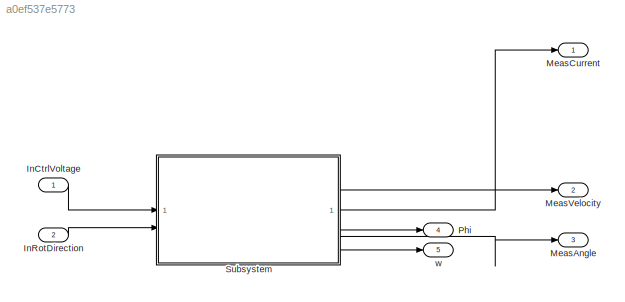
MODEL slx_a0ef537e5773
KIND model
CONFIG AbsTol = auto
CONFIG EnableMultiTasking = off
CONFIG FixedStep = auto
CONFIG MaxStep = auto
CONFIG MinStep = auto
CONFIG RelTol = 1e-3
CONFIG SampleTimeConstraint = Unconstrained
CONFIG SolverName = VariableStepAuto
CONFIG StartTime = 0.0
CONFIG StopTime = 10.0
BLOCK [Outport]  Phi
  Port = 4
BLOCK [Inport] InCtrlVoltage
BLOCK [Inport] InRotDirection
  Port = 2
BLOCK [Outport] MeasAngle
  Port = 3
BLOCK [Outport] MeasCurrent
BLOCK [Outport] MeasVelocity
  Port = 2
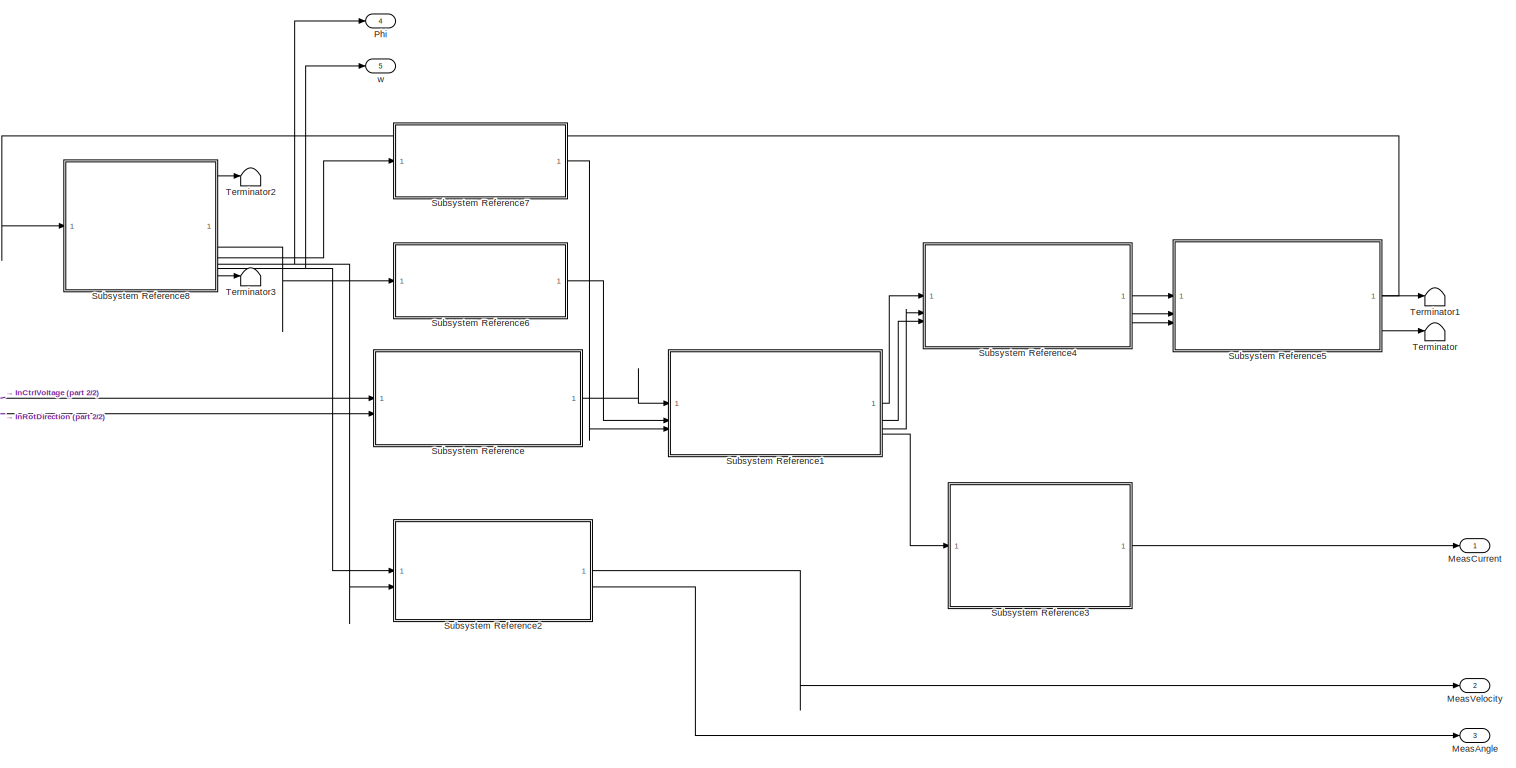
[diagram: Subsystem - part 1/2, most of the canvas]
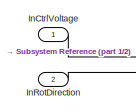
[diagram: Subsystem - part 2/2, middle left region]
BLOCK [SubSystem] Subsystem
BLOCK [Outport] Subsystem/ Phi
  Port = 4
BLOCK [Inport] Subsystem/InCtrlVoltage
BLOCK [Inport] Subsystem/InRotDirection
  Port = 2
BLOCK [Outport] Subsystem/MeasAngle
  Port = 3
BLOCK [Outport] Subsystem/MeasCurrent
BLOCK [Outport] Subsystem/MeasVelocity
  Port = 2
BLOCK [SubSystem] Subsystem/Subsystem Reference
  Kpa = 7.3
  ReferencedSubsystem = Power_Gain
BLOCK [SubSystem] Subsystem/Subsystem Reference1
  ReferencedSubsystem = Motor
  km = 16e-3
  kw = 62.8
  motor_nominal_voltage = 24
  vis_friction_coef_motor = 0.1
BLOCK [SubSystem] Subsystem/Subsystem Reference2
  ReferencedSubsystem = HallSensor
BLOCK [SubSystem] Subsystem/Subsystem Reference3
  ReferencedSubsystem = CurrentSensor
BLOCK [SubSystem] Subsystem/Subsystem Reference4
  J_gear = 2.4e-6
  ReferencedSubsystem = Reductor
  i_gear = 100
  vis_friction_coef_gear = 0.15
BLOCK [SubSystem] Subsystem/Subsystem Reference5
  J_pinion = 1e-6
  ReferencedSubsystem = RackAndPinion
  i_rp = 20000
  vis_friction_coef_rp = 0.002
BLOCK [SubSystem] Subsystem/Subsystem Reference6
  ReferencedSubsystem = BackwardAccConverter
BLOCK [SubSystem] Subsystem/Subsystem Reference7
  ReferencedSubsystem = BackwardAccConverter
BLOCK [SubSystem] Subsystem/Subsystem Reference8
  ReferencedSubsystem = InversePendulum
BLOCK [Terminator] Subsystem/Terminator
BLOCK [Terminator] Subsystem/Terminator1
BLOCK [Terminator] Subsystem/Terminator2
BLOCK [Terminator] Subsystem/Terminator3
BLOCK [Outport] Subsystem/w
  Port = 5
BLOCK [Outport] w
  Port = 5
LINE InCtrlVoltage:1 -> Subsystem:1
LINE InRotDirection:1 -> Subsystem:2
LINE Subsystem/InCtrlVoltage:1 -> Subsystem/Subsystem Reference:1
LINE Subsystem/InRotDirection:1 -> Subsystem/Subsystem Reference:2
LINE Subsystem/Subsystem Reference1:1 -> Subsystem/Subsystem Reference4:1
LINE Subsystem/Subsystem Reference1:2 -> Subsystem/Subsystem Reference4:3
LINE Subsystem/Subsystem Reference1:3 -> Subsystem/Subsystem Reference4:2
LINE Subsystem/Subsystem Reference1:4 -> Subsystem/Subsystem Reference3:1
LINE Subsystem/Subsystem Reference2:1 -> Subsystem/MeasVelocity:1
LINE Subsystem/Subsystem Reference2:2 -> Subsystem/MeasAngle:1
LINE Subsystem/Subsystem Reference3:1 -> Subsystem/MeasCurrent:1
LINE Subsystem/Subsystem Reference4:1 -> Subsystem/Subsystem Reference5:1
LINE Subsystem/Subsystem Reference4:2 -> Subsystem/Subsystem Reference5:2
LINE Subsystem/Subsystem Reference4:3 -> Subsystem/Subsystem Reference5:3
LINE Subsystem/Subsystem Reference5:1 -> Subsystem/Subsystem Reference8:1
LINE Subsystem/Subsystem Reference5:2 -> Subsystem/Terminator1:1
LINE Subsystem/Subsystem Reference5:3 -> Subsystem/Terminator:1
LINE Subsystem/Subsystem Reference6:1 -> Subsystem/Subsystem Reference1:2
LINE Subsystem/Subsystem Reference7:1 -> Subsystem/Subsystem Reference1:3
LINE Subsystem/Subsystem Reference8:1 -> Subsystem/Terminator2:1
LINE Subsystem/Subsystem Reference8:2 -> Subsystem/Subsystem Reference6:1
LINE Subsystem/Subsystem Reference8:3 -> Subsystem/Subsystem Reference7:1
NET Subsystem/Subsystem Reference8:4 -> Subsystem/ Phi:1, Subsystem/Subsystem Reference2:2
NET Subsystem/Subsystem Reference8:5 -> Subsystem/Subsystem Reference2:1, Subsystem/w:1
LINE Subsystem/Subsystem Reference8:6 -> Subsystem/Terminator3:1
LINE Subsystem/Subsystem Reference:1 -> Subsystem/Subsystem Reference1:1
LINE Subsystem:1 -> MeasCurrent:1
LINE Subsystem:2 -> MeasVelocity:1
LINE Subsystem:3 -> MeasAngle:1
LINE Subsystem:4 ->  Phi:1
LINE Subsystem:5 -> w:1
note: NET lines group one-source signal fan-out (src -> all destinations, sorted); 1:1 wires keep LINE
